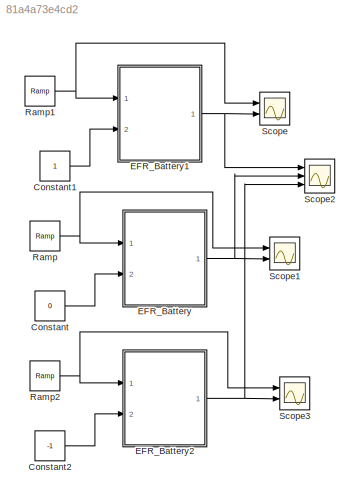
MODEL slx_81a4a73e4cd2
KIND model
CONFIG AbsTol = auto
CONFIG EnableMultiTasking = off
CONFIG FixedStep = auto
CONFIG MaxStep = auto
CONFIG MinStep = auto
CONFIG RelTol = 1e-3
CONFIG SampleTimeConstraint = Unconstrained
CONFIG SolverName = VariableStepAuto
CONFIG StartTime = 0.0
CONFIG StopTime = 8
BLOCK [Constant] Constant
  Value = 0
BLOCK [Constant] Constant1
BLOCK [Constant] Constant2
  Value = -1
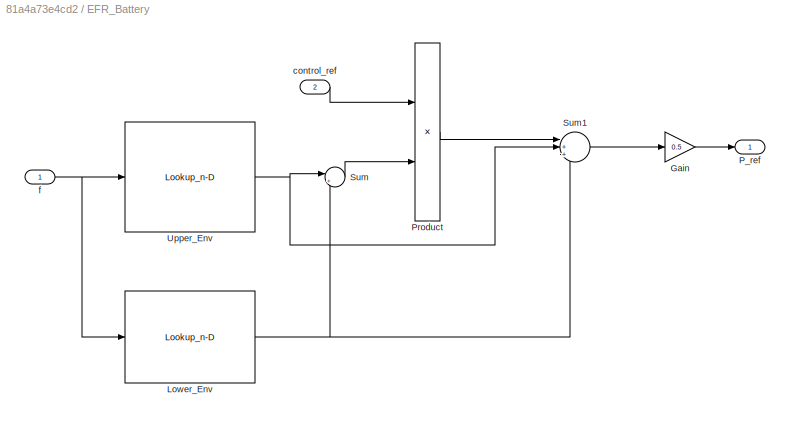
BLOCK [SubSystem] EFR_Battery
  Ports = [2, 1]
  RequestExecContextInheritance = off
BLOCK [Gain] EFR_Battery/Gain
  Gain = 0.5
BLOCK [Lookup_n-D] EFR_Battery/Lower_Env
  BreakpointsForDimension1 = f_serv_low
  ExtrapMethod = Clip
  InputPortMap = u0
  InternalRulePriority = Speed
  NumberOfTableDimensions = 1
  Ports = [1, 1]
  RndMeth = Simplest
  Table = P_serv_low
  UseLastTableValue = on
BLOCK [Outport] EFR_Battery/P_ref
  VectorParamsAs1DForOutWhenUnconnected = off
BLOCK [Product] EFR_Battery/Product
  Ports = [2, 1]
BLOCK [Sum] EFR_Battery/Sum
  Inputs = |+-
  Ports = [2, 1]
BLOCK [Sum] EFR_Battery/Sum1
  Inputs = |+++
  Ports = [3, 1]
BLOCK [Lookup_n-D] EFR_Battery/Upper_Env
  BreakpointsForDimension1 = f_serv_upp
  ExtrapMethod = Clip
  InputPortMap = u0
  InternalRulePriority = Speed
  NumberOfTableDimensions = 1
  Ports = [1, 1]
  RndMeth = Simplest
  Table = P_serv_upp
  UseLastTableValue = on
BLOCK [Inport] EFR_Battery/control_ref
  NameLocation = top
  Port = 2
  SampleTime = 10
BLOCK [Inport] EFR_Battery/f
  NameLocation = top
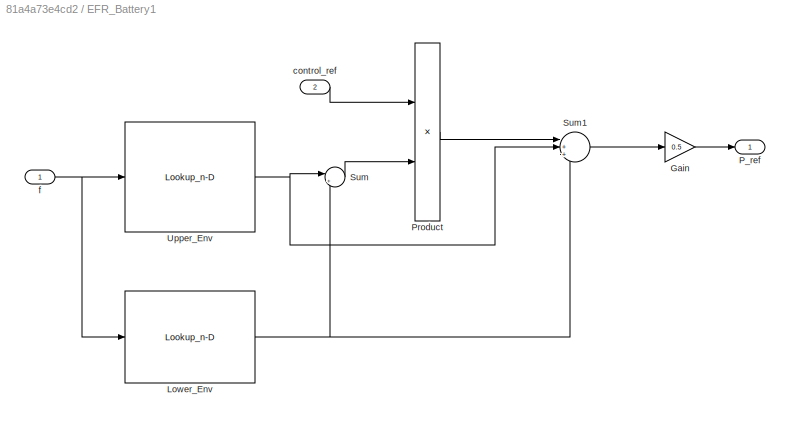
BLOCK [SubSystem] EFR_Battery1
  Ports = [2, 1]
  RequestExecContextInheritance = off
BLOCK [Gain] EFR_Battery1/Gain
  Gain = 0.5
BLOCK [Lookup_n-D] EFR_Battery1/Lower_Env
  BreakpointsForDimension1 = f_serv_low
  ExtrapMethod = Clip
  InputPortMap = u0
  InternalRulePriority = Speed
  NumberOfTableDimensions = 1
  Ports = [1, 1]
  RndMeth = Simplest
  Table = P_serv_low
  UseLastTableValue = on
BLOCK [Outport] EFR_Battery1/P_ref
  VectorParamsAs1DForOutWhenUnconnected = off
BLOCK [Product] EFR_Battery1/Product
  Ports = [2, 1]
BLOCK [Sum] EFR_Battery1/Sum
  Inputs = |+-
  Ports = [2, 1]
BLOCK [Sum] EFR_Battery1/Sum1
  Inputs = |+++
  Ports = [3, 1]
BLOCK [Lookup_n-D] EFR_Battery1/Upper_Env
  BreakpointsForDimension1 = f_serv_upp
  ExtrapMethod = Clip
  InputPortMap = u0
  InternalRulePriority = Speed
  NumberOfTableDimensions = 1
  Ports = [1, 1]
  RndMeth = Simplest
  Table = P_serv_upp
  UseLastTableValue = on
BLOCK [Inport] EFR_Battery1/control_ref
  NameLocation = top
  Port = 2
  SampleTime = 10
BLOCK [Inport] EFR_Battery1/f
  NameLocation = top
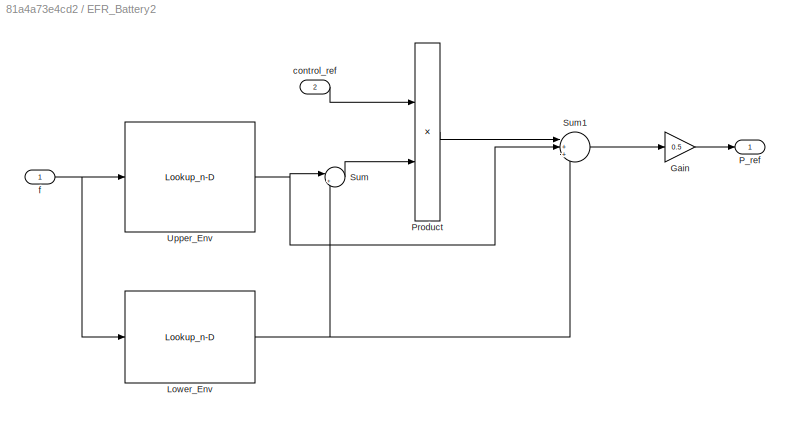
BLOCK [SubSystem] EFR_Battery2
  Ports = [2, 1]
  RequestExecContextInheritance = off
BLOCK [Gain] EFR_Battery2/Gain
  Gain = 0.5
BLOCK [Lookup_n-D] EFR_Battery2/Lower_Env
  BreakpointsForDimension1 = f_serv_low
  ExtrapMethod = Clip
  InputPortMap = u0
  InternalRulePriority = Speed
  NumberOfTableDimensions = 1
  Ports = [1, 1]
  RndMeth = Simplest
  Table = P_serv_low
  UseLastTableValue = on
BLOCK [Outport] EFR_Battery2/P_ref
  VectorParamsAs1DForOutWhenUnconnected = off
BLOCK [Product] EFR_Battery2/Product
  Ports = [2, 1]
BLOCK [Sum] EFR_Battery2/Sum
  Inputs = |+-
  Ports = [2, 1]
BLOCK [Sum] EFR_Battery2/Sum1
  Inputs = |+++
  Ports = [3, 1]
BLOCK [Lookup_n-D] EFR_Battery2/Upper_Env
  BreakpointsForDimension1 = f_serv_upp
  ExtrapMethod = Clip
  InputPortMap = u0
  InternalRulePriority = Speed
  NumberOfTableDimensions = 1
  Ports = [1, 1]
  RndMeth = Simplest
  Table = P_serv_upp
  UseLastTableValue = on
BLOCK [Inport] EFR_Battery2/control_ref
  NameLocation = top
  Port = 2
  SampleTime = 10
BLOCK [Inport] EFR_Battery2/f
  NameLocation = top
BLOCK [Reference] Ramp  REF=simulink/Sources/Ramp
  Ports = [0, 1]
  SourceBlock = simulink/Sources/Ramp
  SourceProductBaseCode = SL
  SourceType = Ramp
BLOCK [Reference] Ramp1  REF=simulink/Sources/Ramp
  Ports = [0, 1]
  SourceBlock = simulink/Sources/Ramp
  SourceProductBaseCode = SL
  SourceType = Ramp
BLOCK [Reference] Ramp2  REF=simulink/Sources/Ramp
  Ports = [0, 1]
  SourceBlock = simulink/Sources/Ramp
  SourceProductBaseCode = SL
  SourceType = Ramp
BLOCK [Scope] Scope
  Floating = off
  NumInputPorts = 2
  Ports = [2]
  ScopeSpecificationString = Simulink.scopes.TimeScopeBlockCfg('CurrentConfiguration', extmgr.ConfigurationSet(extmgr.Configuration('Core','General UI',true,'FigureColor',[1 1 1]),extmgr.Configuration('Core','Source UI',true),extmgr.Configuration('Sources','WiredSimulink',true),extmgr.Configuration('Visuals','Time Domain',true,'SerializedDisplays',{struct('MinYLimReal','49.375','MaxYLimReal','50.625','YLabelReal','','MinYLimM...<+2480ch>
BLOCK [Scope] Scope1
  Floating = off
  NumInputPorts = 2
  Ports = [2]
  ScopeSpecificationString = Simulink.scopes.TimeScopeBlockCfg('CurrentConfiguration', extmgr.ConfigurationSet(extmgr.Configuration('Core','General UI',true,'FigureColor',[1 1 1]),extmgr.Configuration('Core','Source UI',true),extmgr.Configuration('Sources','WiredSimulink',true,'DataLoggingVariableName','ScopeData1'),extmgr.Configuration('Visuals','Time Domain',true,'SerializedDisplays',{struct('MinYLimReal','49.375','MaxYLimR...<+3223ch>
BLOCK [Scope] Scope2
  Floating = off
  NumInputPorts = 3
  Ports = [3]
  ScopeSpecificationString = Simulink.scopes.TimeScopeBlockCfg('CurrentConfiguration', extmgr.ConfigurationSet(extmgr.Configuration('Core','General UI',true,'FigureColor',[1 1 1]),extmgr.Configuration('Core','Source UI',true),extmgr.Configuration('Sources','WiredSimulink',true,'DataLoggingVariableName','ScopeData2'),extmgr.Configuration('Visuals','Time Domain',true,'SerializedDisplays',{struct('MinYLimReal','-1.25','MaxYLimRe...<+2020ch>
BLOCK [Scope] Scope3
  Floating = off
  NumInputPorts = 2
  Ports = [2]
  ScopeSpecificationString = Simulink.scopes.TimeScopeBlockCfg('CurrentConfiguration', extmgr.ConfigurationSet(extmgr.Configuration('Core','General UI',true,'FigureColor',[1 1 1]),extmgr.Configuration('Core','Source UI',true),extmgr.Configuration('Sources','WiredSimulink',true,'DataLoggingVariableName','ScopeData3'),extmgr.Configuration('Visuals','Time Domain',true,'SerializedDisplays',{struct('MinYLimReal','48.75','MaxYLimRe...<+3215ch>
LINE Constant1:1 -> EFR_Battery1:2
LINE Constant2:1 -> EFR_Battery2:2
LINE Constant:1 -> EFR_Battery:2
LINE EFR_Battery/Gain:1 -> EFR_Battery/P_ref:1
NET EFR_Battery/Lower_Env:1 -> EFR_Battery/Sum1:3, EFR_Battery/Sum:2
LINE EFR_Battery/Product:1 -> EFR_Battery/Sum1:1
LINE EFR_Battery/Sum1:1 -> EFR_Battery/Gain:1
LINE EFR_Battery/Sum:1 -> EFR_Battery/Product:2
NET EFR_Battery/Upper_Env:1 -> EFR_Battery/Sum1:2, EFR_Battery/Sum:1
LINE EFR_Battery/control_ref:1 -> EFR_Battery/Product:1
NET EFR_Battery/f:1 -> EFR_Battery/Lower_Env:1, EFR_Battery/Upper_Env:1
LINE EFR_Battery1/Gain:1 -> EFR_Battery1/P_ref:1
NET EFR_Battery1/Lower_Env:1 -> EFR_Battery1/Sum1:3, EFR_Battery1/Sum:2
LINE EFR_Battery1/Product:1 -> EFR_Battery1/Sum1:1
LINE EFR_Battery1/Sum1:1 -> EFR_Battery1/Gain:1
LINE EFR_Battery1/Sum:1 -> EFR_Battery1/Product:2
NET EFR_Battery1/Upper_Env:1 -> EFR_Battery1/Sum1:2, EFR_Battery1/Sum:1
LINE EFR_Battery1/control_ref:1 -> EFR_Battery1/Product:1
NET EFR_Battery1/f:1 -> EFR_Battery1/Lower_Env:1, EFR_Battery1/Upper_Env:1
NET EFR_Battery1:1 -> Scope2:1, Scope:2
LINE EFR_Battery2/Gain:1 -> EFR_Battery2/P_ref:1
NET EFR_Battery2/Lower_Env:1 -> EFR_Battery2/Sum1:3, EFR_Battery2/Sum:2
LINE EFR_Battery2/Product:1 -> EFR_Battery2/Sum1:1
LINE EFR_Battery2/Sum1:1 -> EFR_Battery2/Gain:1
LINE EFR_Battery2/Sum:1 -> EFR_Battery2/Product:2
NET EFR_Battery2/Upper_Env:1 -> EFR_Battery2/Sum1:2, EFR_Battery2/Sum:1
LINE EFR_Battery2/control_ref:1 -> EFR_Battery2/Product:1
NET EFR_Battery2/f:1 -> EFR_Battery2/Lower_Env:1, EFR_Battery2/Upper_Env:1
NET EFR_Battery2:1 -> Scope2:3, Scope3:2
NET EFR_Battery:1 -> Scope1:2, Scope2:2
NET Ramp1:1 -> EFR_Battery1:1, Scope:1
NET Ramp2:1 -> EFR_Battery2:1, Scope3:1
NET Ramp:1 -> EFR_Battery:1, Scope1:1
note: NET lines group one-source signal fan-out (src -> all destinations, sorted); 1:1 wires keep LINE
